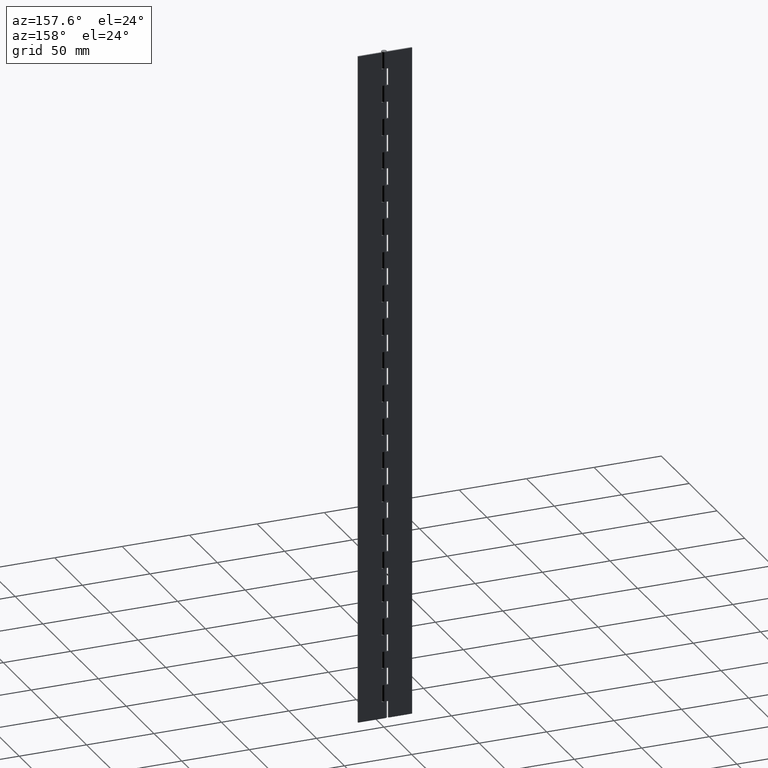
[diagram: clean part render]
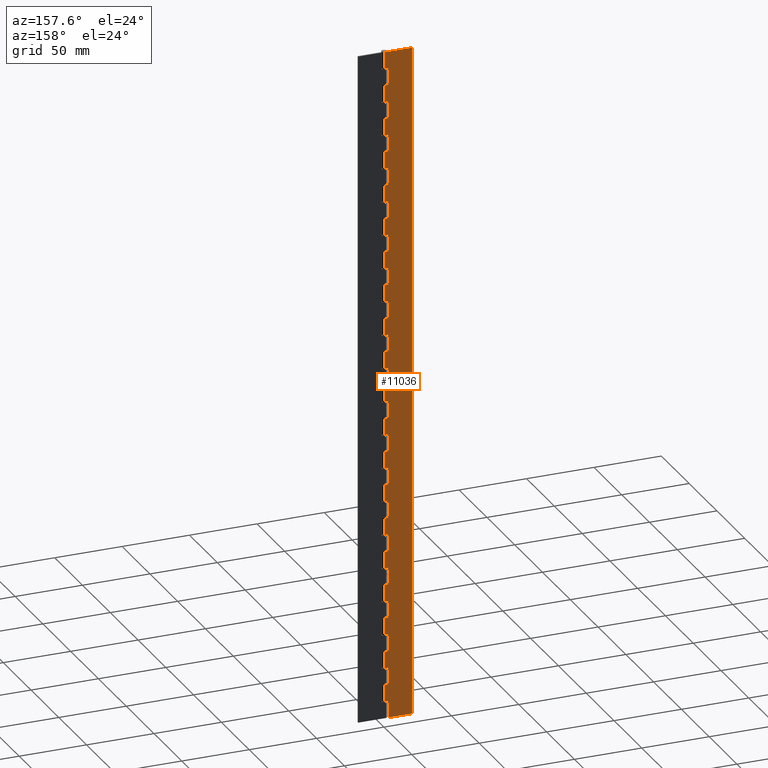
[diagram: same view with one face highlighted and labeled with its STEP entity id]
A machine part, auxiliary view. The second image highlights one B-rep face of the part: STEP entity #11036.
In plain terms, the highlighted face is a freeform B-spline surface patch.
Its self-contained STEP definition (entity closure, byte-faithful):
#5568=CARTESIAN_POINT('',(-2.500000000000000,2.0,475.0));
#5569=VERTEX_POINT('',#5568);
#5575=CARTESIAN_POINT('',(-2.500000000000000,2.0,487.500000000000000));
#5576=VERTEX_POINT('',#5575);
#5577=CARTESIAN_POINT('',(-2.500000000000000,2.0,487.500000000000000));
#5578=CARTESIAN_POINT('',(-2.500000000000000,2.0,475.0));
#5579=QUASI_UNIFORM_CURVE('',1,(#5577,#5578),.UNSPECIFIED.,.F.,.U.);
#5580=EDGE_CURVE('',#5576,#5569,#5579,.T.);
#5604=CARTESIAN_POINT('',(0.0,2.0,475.0));
#5605=VERTEX_POINT('',#5604);
#5625=CARTESIAN_POINT('',(-2.500000000000000,2.0,475.0));
#5626=CARTESIAN_POINT('',(0.0,2.0,475.0));
#5627=QUASI_UNIFORM_CURVE('',1,(#5625,#5626),.UNSPECIFIED.,.F.,.U.);
#5628=EDGE_CURVE('',#5569,#5605,#5627,.T.);
#5672=CARTESIAN_POINT('',(0.0,2.0,487.500000000000000));
#5673=VERTEX_POINT('',#5672);
#5729=CARTESIAN_POINT('',(0.0,2.0,487.500000000000000));
#5730=CARTESIAN_POINT('',(-2.500000000000000,2.0,487.500000000000000));
#5731=QUASI_UNIFORM_CURVE('',1,(#5729,#5730),.UNSPECIFIED.,.F.,.U.);
#5732=EDGE_CURVE('',#5673,#5576,#5731,.T.);
#5744=CARTESIAN_POINT('',(-2.500000000000000,2.0,450.0));
#5745=VERTEX_POINT('',#5744);
#5751=CARTESIAN_POINT('',(-2.500000000000000,2.0,462.500000000000000));
#5752=VERTEX_POINT('',#5751);
#5753=CARTESIAN_POINT('',(-2.500000000000000,2.0,462.500000000000000));
#5754=CARTESIAN_POINT('',(-2.500000000000000,2.0,450.0));
#5755=QUASI_UNIFORM_CURVE('',1,(#5753,#5754),.UNSPECIFIED.,.F.,.U.);
#5756=EDGE_CURVE('',#5752,#5745,#5755,.T.);
#5780=CARTESIAN_POINT('',(0.0,2.0,450.0));
#5781=VERTEX_POINT('',#5780);
#5801=CARTESIAN_POINT('',(-2.500000000000000,2.0,450.0));
#5802=CARTESIAN_POINT('',(0.0,2.0,450.0));
#5803=QUASI_UNIFORM_CURVE('',1,(#5801,#5802),.UNSPECIFIED.,.F.,.U.);
#5804=EDGE_CURVE('',#5745,#5781,#5803,.T.);
#5848=CARTESIAN_POINT('',(0.0,2.0,462.500000000000000));
#5849=VERTEX_POINT('',#5848);
#5905=CARTESIAN_POINT('',(0.0,2.0,462.500000000000000));
#5906=CARTESIAN_POINT('',(-2.500000000000000,2.0,462.500000000000000));
#5907=QUASI_UNIFORM_CURVE('',1,(#5905,#5906),.UNSPECIFIED.,.F.,.U.);
#5908=EDGE_CURVE('',#5849,#5752,#5907,.T.);
#5920=CARTESIAN_POINT('',(-2.500000000000000,2.0,425.0));
#5921=VERTEX_POINT('',#5920);
#5927=CARTESIAN_POINT('',(-2.500000000000000,2.0,437.500000000000000));
#5928=VERTEX_POINT('',#5927);
#5929=CARTESIAN_POINT('',(-2.500000000000000,2.0,437.500000000000000));
#5930=CARTESIAN_POINT('',(-2.500000000000000,2.0,425.0));
#5931=QUASI_UNIFORM_CURVE('',1,(#5929,#5930),.UNSPECIFIED.,.F.,.U.);
#5932=EDGE_CURVE('',#5928,#5921,#5931,.T.);
#5956=CARTESIAN_POINT('',(0.0,2.0,425.0));
#5957=VERTEX_POINT('',#5956);
#5977=CARTESIAN_POINT('',(-2.500000000000000,2.0,425.0));
#5978=CARTESIAN_POINT('',(0.0,2.0,425.0));
#5979=QUASI_UNIFORM_CURVE('',1,(#5977,#5978),.UNSPECIFIED.,.F.,.U.);
#5980=EDGE_CURVE('',#5921,#5957,#5979,.T.);
#6024=CARTESIAN_POINT('',(0.0,2.0,437.500000000000000));
#6025=VERTEX_POINT('',#6024);
#6081=CARTESIAN_POINT('',(0.0,2.0,437.500000000000000));
#6082=CARTESIAN_POINT('',(-2.500000000000000,2.0,437.500000000000000));
#6083=QUASI_UNIFORM_CURVE('',1,(#6081,#6082),.UNSPECIFIED.,.F.,.U.);
#6084=EDGE_CURVE('',#6025,#5928,#6083,.T.);
#6096=CARTESIAN_POINT('',(-2.500000000000000,2.0,400.0));
#6097=VERTEX_POINT('',#6096);
#6103=CARTESIAN_POINT('',(-2.500000000000000,2.0,412.500000000000000));
#6104=VERTEX_POINT('',#6103);
#6105=CARTESIAN_POINT('',(-2.500000000000000,2.0,412.500000000000000));
#6106=CARTESIAN_POINT('',(-2.500000000000000,2.0,400.0));
#6107=QUASI_UNIFORM_CURVE('',1,(#6105,#6106),.UNSPECIFIED.,.F.,.U.);
#6108=EDGE_CURVE('',#6104,#6097,#6107,.T.);
#6132=CARTESIAN_POINT('',(0.0,2.0,400.0));
#6133=VERTEX_POINT('',#6132);
#6153=CARTESIAN_POINT('',(-2.500000000000000,2.0,400.0));
#6154=CARTESIAN_POINT('',(0.0,2.0,400.0));
#6155=QUASI_UNIFORM_CURVE('',1,(#6153,#6154),.UNSPECIFIED.,.F.,.U.);
#6156=EDGE_CURVE('',#6097,#6133,#6155,.T.);
#6200=CARTESIAN_POINT('',(0.0,2.0,412.500000000000000));
#6201=VERTEX_POINT('',#6200);
#6257=CARTESIAN_POINT('',(0.0,2.0,412.500000000000000));
#6258=CARTESIAN_POINT('',(-2.500000000000000,2.0,412.500000000000000));
#6259=QUASI_UNIFORM_CURVE('',1,(#6257,#6258),.UNSPECIFIED.,.F.,.U.);
#6260=EDGE_CURVE('',#6201,#6104,#6259,.T.);
#6272=CARTESIAN_POINT('',(-2.500000000000000,2.0,375.0));
#6273=VERTEX_POINT('',#6272);
#6279=CARTESIAN_POINT('',(-2.500000000000000,2.0,387.500000000000000));
#6280=VERTEX_POINT('',#6279);
#6281=CARTESIAN_POINT('',(-2.500000000000000,2.0,387.500000000000000));
#6282=CARTESIAN_POINT('',(-2.500000000000000,2.0,375.0));
#6283=QUASI_UNIFORM_CURVE('',1,(#6281,#6282),.UNSPECIFIED.,.F.,.U.);
#6284=EDGE_CURVE('',#6280,#6273,#6283,.T.);
#6308=CARTESIAN_POINT('',(0.0,2.0,375.0));
#6309=VERTEX_POINT('',#6308);
#6329=CARTESIAN_POINT('',(-2.500000000000000,2.0,375.0));
#6330=CARTESIAN_POINT('',(0.0,2.0,375.0));
#6331=QUASI_UNIFORM_CURVE('',1,(#6329,#6330),.UNSPECIFIED.,.F.,.U.);
#6332=EDGE_CURVE('',#6273,#6309,#6331,.T.);
#6376=CARTESIAN_POINT('',(0.0,2.0,387.500000000000000));
#6377=VERTEX_POINT('',#6376);
#6433=CARTESIAN_POINT('',(0.0,2.0,387.500000000000000));
#6434=CARTESIAN_POINT('',(-2.500000000000000,2.0,387.500000000000000));
#6435=QUASI_UNIFORM_CURVE('',1,(#6433,#6434),.UNSPECIFIED.,.F.,.U.);
#6436=EDGE_CURVE('',#6377,#6280,#6435,.T.);
#6448=CARTESIAN_POINT('',(-2.500000000000000,2.0,350.0));
#6449=VERTEX_POINT('',#6448);
#6455=CARTESIAN_POINT('',(-2.500000000000000,2.0,362.500000000000000));
#6456=VERTEX_POINT('',#6455);
#6457=CARTESIAN_POINT('',(-2.500000000000000,2.0,362.500000000000000));
#6458=CARTESIAN_POINT('',(-2.500000000000000,2.0,350.0));
#6459=QUASI_UNIFORM_CURVE('',1,(#6457,#6458),.UNSPECIFIED.,.F.,.U.);
#6460=EDGE_CURVE('',#6456,#6449,#6459,.T.);
#6484=CARTESIAN_POINT('',(0.0,2.0,350.0));
#6485=VERTEX_POINT('',#6484);
#6505=CARTESIAN_POINT('',(-2.500000000000000,2.0,350.0));
#6506=CARTESIAN_POINT('',(0.0,2.0,350.0));
#6507=QUASI_UNIFORM_CURVE('',1,(#6505,#6506),.UNSPECIFIED.,.F.,.U.);
#6508=EDGE_CURVE('',#6449,#6485,#6507,.T.);
#6552=CARTESIAN_POINT('',(0.0,2.0,362.500000000000000));
#6553=VERTEX_POINT('',#6552);
#6609=CARTESIAN_POINT('',(0.0,2.0,362.500000000000000));
#6610=CARTESIAN_POINT('',(-2.500000000000000,2.0,362.500000000000000));
#6611=QUASI_UNIFORM_CURVE('',1,(#6609,#6610),.UNSPECIFIED.,.F.,.U.);
#6612=EDGE_CURVE('',#6553,#6456,#6611,.T.);
#6624=CARTESIAN_POINT('',(-2.500000000000000,2.0,325.0));
#6625=VERTEX_POINT('',#6624);
#6631=CARTESIAN_POINT('',(-2.500000000000000,2.0,337.500000000000000));
#6632=VERTEX_POINT('',#6631);
#6633=CARTESIAN_POINT('',(-2.500000000000000,2.0,337.500000000000000));
#6634=CARTESIAN_POINT('',(-2.500000000000000,2.0,325.0));
#6635=QUASI_UNIFORM_CURVE('',1,(#6633,#6634),.UNSPECIFIED.,.F.,.U.);
#6636=EDGE_CURVE('',#6632,#6625,#6635,.T.);
#6660=CARTESIAN_POINT('',(0.0,2.0,325.0));
#6661=VERTEX_POINT('',#6660);
#6681=CARTESIAN_POINT('',(-2.500000000000000,2.0,325.0));
#6682=CARTESIAN_POINT('',(0.0,2.0,325.0));
#6683=QUASI_UNIFORM_CURVE('',1,(#6681,#6682),.UNSPECIFIED.,.F.,.U.);
#6684=EDGE_CURVE('',#6625,#6661,#6683,.T.);
#6728=CARTESIAN_POINT('',(0.0,2.0,337.500000000000000));
#6729=VERTEX_POINT('',#6728);
#6785=CARTESIAN_POINT('',(0.0,2.0,337.500000000000000));
#6786=CARTESIAN_POINT('',(-2.500000000000000,2.0,337.500000000000000));
#6787=QUASI_UNIFORM_CURVE('',1,(#6785,#6786),.UNSPECIFIED.,.F.,.U.);
#6788=EDGE_CURVE('',#6729,#6632,#6787,.T.);
#6800=CARTESIAN_POINT('',(-2.500000000000000,2.0,300.0));
#6801=VERTEX_POINT('',#6800);
#6807=CARTESIAN_POINT('',(-2.500000000000000,2.0,312.500000000000000));
#6808=VERTEX_POINT('',#6807);
#6809=CARTESIAN_POINT('',(-2.500000000000000,2.0,312.500000000000000));
#6810=CARTESIAN_POINT('',(-2.500000000000000,2.0,300.0));
#6811=QUASI_UNIFORM_CURVE('',1,(#6809,#6810),.UNSPECIFIED.,.F.,.U.);
#6812=EDGE_CURVE('',#6808,#6801,#6811,.T.);
#6836=CARTESIAN_POINT('',(0.0,2.0,300.0));
#6837=VERTEX_POINT('',#6836);
#6857=CARTESIAN_POINT('',(-2.500000000000000,2.0,300.0));
#6858=CARTESIAN_POINT('',(0.0,2.0,300.0));
#6859=QUASI_UNIFORM_CURVE('',1,(#6857,#6858),.UNSPECIFIED.,.F.,.U.);
#6860=EDGE_CURVE('',#6801,#6837,#6859,.T.);
#6904=CARTESIAN_POINT('',(0.0,2.0,312.500000000000000));
#6905=VERTEX_POINT('',#6904);
#6961=CARTESIAN_POINT('',(0.0,2.0,312.500000000000000));
#6962=CARTESIAN_POINT('',(-2.500000000000000,2.0,312.500000000000000));
#6963=QUASI_UNIFORM_CURVE('',1,(#6961,#6962),.UNSPECIFIED.,.F.,.U.);
#6964=EDGE_CURVE('',#6905,#6808,#6963,.T.);
#6976=CARTESIAN_POINT('',(-2.500000000000000,2.0,275.0));
#6977=VERTEX_POINT('',#6976);
#6983=CARTESIAN_POINT('',(-2.500000000000000,2.0,287.500000000000000));
#6984=VERTEX_POINT('',#6983);
#6985=CARTESIAN_POINT('',(-2.500000000000000,2.0,287.500000000000000));
#6986=CARTESIAN_POINT('',(-2.500000000000000,2.0,275.0));
#6987=QUASI_UNIFORM_CURVE('',1,(#6985,#6986),.UNSPECIFIED.,.F.,.U.);
#6988=EDGE_CURVE('',#6984,#6977,#6987,.T.);
#7012=CARTESIAN_POINT('',(0.0,2.0,275.0));
#7013=VERTEX_POINT('',#7012);
#7033=CARTESIAN_POINT('',(-2.500000000000000,2.0,275.0));
#7034=CARTESIAN_POINT('',(0.0,2.0,275.0));
#7035=QUASI_UNIFORM_CURVE('',1,(#7033,#7034),.UNSPECIFIED.,.F.,.U.);
#7036=EDGE_CURVE('',#6977,#7013,#7035,.T.);
#7080=CARTESIAN_POINT('',(0.0,2.0,287.500000000000000));
#7081=VERTEX_POINT('',#7080);
#7137=CARTESIAN_POINT('',(0.0,2.0,287.500000000000000));
#7138=CARTESIAN_POINT('',(-2.500000000000000,2.0,287.500000000000000));
#7139=QUASI_UNIFORM_CURVE('',1,(#7137,#7138),.UNSPECIFIED.,.F.,.U.);
#7140=EDGE_CURVE('',#7081,#6984,#7139,.T.);
#7152=CARTESIAN_POINT('',(-2.500000000000000,2.0,250.0));
#7153=VERTEX_POINT('',#7152);
#7159=CARTESIAN_POINT('',(-2.500000000000000,2.0,262.500000000000000));
#7160=VERTEX_POINT('',#7159);
#7161=CARTESIAN_POINT('',(-2.500000000000000,2.0,262.500000000000000));
#7162=CARTESIAN_POINT('',(-2.500000000000000,2.0,250.0));
#7163=QUASI_UNIFORM_CURVE('',1,(#7161,#7162),.UNSPECIFIED.,.F.,.U.);
#7164=EDGE_CURVE('',#7160,#7153,#7163,.T.);
#7188=CARTESIAN_POINT('',(0.0,2.0,250.0));
#7189=VERTEX_POINT('',#7188);
#7209=CARTESIAN_POINT('',(-2.500000000000000,2.0,250.0));
#7210=CARTESIAN_POINT('',(0.0,2.0,250.0));
#7211=QUASI_UNIFORM_CURVE('',1,(#7209,#7210),.UNSPECIFIED.,.F.,.U.);
#7212=EDGE_CURVE('',#7153,#7189,#7211,.T.);
#7256=CARTESIAN_POINT('',(0.0,2.0,262.500000000000000));
#7257=VERTEX_POINT('',#7256);
#7313=CARTESIAN_POINT('',(0.0,2.0,262.500000000000000));
#7314=CARTESIAN_POINT('',(-2.500000000000000,2.0,262.500000000000000));
#7315=QUASI_UNIFORM_CURVE('',1,(#7313,#7314),.UNSPECIFIED.,.F.,.U.);
#7316=EDGE_CURVE('',#7257,#7160,#7315,.T.);
#7328=CARTESIAN_POINT('',(-2.500000000000000,2.0,225.0));
#7329=VERTEX_POINT('',#7328);
#7335=CARTESIAN_POINT('',(-2.500000000000000,2.0,237.500000000000000));
#7336=VERTEX_POINT('',#7335);
#7337=CARTESIAN_POINT('',(-2.500000000000000,2.0,237.500000000000000));
#7338=CARTESIAN_POINT('',(-2.500000000000000,2.0,225.0));
#7339=QUASI_UNIFORM_CURVE('',1,(#7337,#7338),.UNSPECIFIED.,.F.,.U.);
#7340=EDGE_CURVE('',#7336,#7329,#7339,.T.);
#7364=CARTESIAN_POINT('',(0.0,2.0,225.0));
#7365=VERTEX_POINT('',#7364);
#7385=CARTESIAN_POINT('',(-2.500000000000000,2.0,225.0));
#7386=CARTESIAN_POINT('',(0.0,2.0,225.0));
#7387=QUASI_UNIFORM_CURVE('',1,(#7385,#7386),.UNSPECIFIED.,.F.,.U.);
#7388=EDGE_CURVE('',#7329,#7365,#7387,.T.);
#7432=CARTESIAN_POINT('',(0.0,2.0,237.500000000000000));
#7433=VERTEX_POINT('',#7432);
#7489=CARTESIAN_POINT('',(0.0,2.0,237.500000000000000));
#7490=CARTESIAN_POINT('',(-2.500000000000000,2.0,237.500000000000000));
#7491=QUASI_UNIFORM_CURVE('',1,(#7489,#7490),.UNSPECIFIED.,.F.,.U.);
#7492=EDGE_CURVE('',#7433,#7336,#7491,.T.);
#7504=CARTESIAN_POINT('',(-2.500000000000000,2.0,200.0));
#7505=VERTEX_POINT('',#7504);
#7511=CARTESIAN_POINT('',(-2.500000000000000,2.0,212.500000000000000));
#7512=VERTEX_POINT('',#7511);
#7513=CARTESIAN_POINT('',(-2.500000000000000,2.0,212.500000000000000));
#7514=CARTESIAN_POINT('',(-2.500000000000000,2.0,200.0));
#7515=QUASI_UNIFORM_CURVE('',1,(#7513,#7514),.UNSPECIFIED.,.F.,.U.);
#7516=EDGE_CURVE('',#7512,#7505,#7515,.T.);
#7540=CARTESIAN_POINT('',(0.0,2.0,200.0));
#7541=VERTEX_POINT('',#7540);
#7561=CARTESIAN_POINT('',(-2.500000000000000,2.0,200.0));
#7562=CARTESIAN_POINT('',(0.0,2.0,200.0));
#7563=QUASI_UNIFORM_CURVE('',1,(#7561,#7562),.UNSPECIFIED.,.F.,.U.);
#7564=EDGE_CURVE('',#7505,#7541,#7563,.T.);
#7608=CARTESIAN_POINT('',(0.0,2.0,212.500000000000000));
#7609=VERTEX_POINT('',#7608);
#7665=CARTESIAN_POINT('',(0.0,2.0,212.500000000000000));
#7666=CARTESIAN_POINT('',(-2.500000000000000,2.0,212.500000000000000));
#7667=QUASI_UNIFORM_CURVE('',1,(#7665,#7666),.UNSPECIFIED.,.F.,.U.);
#7668=EDGE_CURVE('',#7609,#7512,#7667,.T.);
#7680=CARTESIAN_POINT('',(-2.500000000000000,2.0,175.0));
#7681=VERTEX_POINT('',#7680);
#7687=CARTESIAN_POINT('',(-2.500000000000000,2.0,187.500000000000000));
#7688=VERTEX_POINT('',#7687);
#7689=CARTESIAN_POINT('',(-2.500000000000000,2.0,187.500000000000000));
#7690=CARTESIAN_POINT('',(-2.500000000000000,2.0,175.0));
#7691=QUASI_UNIFORM_CURVE('',1,(#7689,#7690),.UNSPECIFIED.,.F.,.U.);
#7692=EDGE_CURVE('',#7688,#7681,#7691,.T.);
#7716=CARTESIAN_POINT('',(0.0,2.0,175.0));
#7717=VERTEX_POINT('',#7716);
#7737=CARTESIAN_POINT('',(-2.500000000000000,2.0,175.0));
#7738=CARTESIAN_POINT('',(0.0,2.0,175.0));
#7739=QUASI_UNIFORM_CURVE('',1,(#7737,#7738),.UNSPECIFIED.,.F.,.U.);
#7740=EDGE_CURVE('',#7681,#7717,#7739,.T.);
#7784=CARTESIAN_POINT('',(0.0,2.0,187.500000000000000));
#7785=VERTEX_POINT('',#7784);
#7841=CARTESIAN_POINT('',(0.0,2.0,187.500000000000000));
#7842=CARTESIAN_POINT('',(-2.500000000000000,2.0,187.500000000000000));
#7843=QUASI_UNIFORM_CURVE('',1,(#7841,#7842),.UNSPECIFIED.,.F.,.U.);
#7844=EDGE_CURVE('',#7785,#7688,#7843,.T.);
#7856=CARTESIAN_POINT('',(-2.500000000000000,2.0,150.0));
#7857=VERTEX_POINT('',#7856);
#7863=CARTESIAN_POINT('',(-2.500000000000000,2.0,162.500000000000000));
#7864=VERTEX_POINT('',#7863);
#7865=CARTESIAN_POINT('',(-2.500000000000000,2.0,162.500000000000000));
#7866=CARTESIAN_POINT('',(-2.500000000000000,2.0,150.0));
#7867=QUASI_UNIFORM_CURVE('',1,(#7865,#7866),.UNSPECIFIED.,.F.,.U.);
#7868=EDGE_CURVE('',#7864,#7857,#7867,.T.);
#7892=CARTESIAN_POINT('',(0.0,2.0,150.0));
#7893=VERTEX_POINT('',#7892);
#7913=CARTESIAN_POINT('',(-2.500000000000000,2.0,150.0));
#7914=CARTESIAN_POINT('',(0.0,2.0,150.0));
#7915=QUASI_UNIFORM_CURVE('',1,(#7913,#7914),.UNSPECIFIED.,.F.,.U.);
#7916=EDGE_CURVE('',#7857,#7893,#7915,.T.);
#7960=CARTESIAN_POINT('',(0.0,2.0,162.500000000000000));
#7961=VERTEX_POINT('',#7960);
#8017=CARTESIAN_POINT('',(0.0,2.0,162.500000000000000));
#8018=CARTESIAN_POINT('',(-2.500000000000000,2.0,162.500000000000000));
#8019=QUASI_UNIFORM_CURVE('',1,(#8017,#8018),.UNSPECIFIED.,.F.,.U.);
#8020=EDGE_CURVE('',#7961,#7864,#8019,.T.);
#8032=CARTESIAN_POINT('',(-2.500000000000000,2.0,125.0));
#8033=VERTEX_POINT('',#8032);
#8039=CARTESIAN_POINT('',(-2.500000000000000,2.0,137.500000000000000));
#8040=VERTEX_POINT('',#8039);
#8041=CARTESIAN_POINT('',(-2.500000000000000,2.0,137.500000000000000));
#8042=CARTESIAN_POINT('',(-2.500000000000000,2.0,125.0));
#8043=QUASI_UNIFORM_CURVE('',1,(#8041,#8042),.UNSPECIFIED.,.F.,.U.);
#8044=EDGE_CURVE('',#8040,#8033,#8043,.T.);
#8068=CARTESIAN_POINT('',(0.0,2.0,125.0));
#8069=VERTEX_POINT('',#8068);
#8089=CARTESIAN_POINT('',(-2.500000000000000,2.0,125.0));
#8090=CARTESIAN_POINT('',(0.0,2.0,125.0));
#8091=QUASI_UNIFORM_CURVE('',1,(#8089,#8090),.UNSPECIFIED.,.F.,.U.);
#8092=EDGE_CURVE('',#8033,#8069,#8091,.T.);
#8136=CARTESIAN_POINT('',(0.0,2.0,137.500000000000000));
#8137=VERTEX_POINT('',#8136);
#8193=CARTESIAN_POINT('',(0.0,2.0,137.500000000000000));
#8194=CARTESIAN_POINT('',(-2.500000000000000,2.0,137.500000000000000));
#8195=QUASI_UNIFORM_CURVE('',1,(#8193,#8194),.UNSPECIFIED.,.F.,.U.);
#8196=EDGE_CURVE('',#8137,#8040,#8195,.T.);
#8208=CARTESIAN_POINT('',(-2.500000000000000,2.0,100.0));
#8209=VERTEX_POINT('',#8208);
#8215=CARTESIAN_POINT('',(-2.500000000000000,2.0,112.500000000000000));
#8216=VERTEX_POINT('',#8215);
#8217=CARTESIAN_POINT('',(-2.500000000000000,2.0,112.500000000000000));
#8218=CARTESIAN_POINT('',(-2.500000000000000,2.0,100.0));
#8219=QUASI_UNIFORM_CURVE('',1,(#8217,#8218),.UNSPECIFIED.,.F.,.U.);
#8220=EDGE_CURVE('',#8216,#8209,#8219,.T.);
#8244=CARTESIAN_POINT('',(0.0,2.0,100.0));
#8245=VERTEX_POINT('',#8244);
#8265=CARTESIAN_POINT('',(-2.500000000000000,2.0,100.0));
#8266=CARTESIAN_POINT('',(0.0,2.0,100.0));
#8267=QUASI_UNIFORM_CURVE('',1,(#8265,#8266),.UNSPECIFIED.,.F.,.U.);
#8268=EDGE_CURVE('',#8209,#8245,#8267,.T.);
#8312=CARTESIAN_POINT('',(0.0,2.0,112.500000000000000));
#8313=VERTEX_POINT('',#8312);
#8369=CARTESIAN_POINT('',(0.0,2.0,112.500000000000000));
#8370=CARTESIAN_POINT('',(-2.500000000000000,2.0,112.500000000000000));
#8371=QUASI_UNIFORM_CURVE('',1,(#8369,#8370),.UNSPECIFIED.,.F.,.U.);
#8372=EDGE_CURVE('',#8313,#8216,#8371,.T.);
#8384=CARTESIAN_POINT('',(-2.500000000000000,2.0,75.0));
#8385=VERTEX_POINT('',#8384);
#8391=CARTESIAN_POINT('',(-2.500000000000000,2.0,87.500000000000000));
#8392=VERTEX_POINT('',#8391);
#8393=CARTESIAN_POINT('',(-2.500000000000000,2.0,87.500000000000000));
#8394=CARTESIAN_POINT('',(-2.500000000000000,2.0,75.0));
#8395=QUASI_UNIFORM_CURVE('',1,(#8393,#8394),.UNSPECIFIED.,.F.,.U.);
#8396=EDGE_CURVE('',#8392,#8385,#8395,.T.);
#8420=CARTESIAN_POINT('',(0.0,2.0,75.0));
#8421=VERTEX_POINT('',#8420);
#8441=CARTESIAN_POINT('',(-2.500000000000000,2.0,75.0));
#8442=CARTESIAN_POINT('',(0.0,2.0,75.0));
#8443=QUASI_UNIFORM_CURVE('',1,(#8441,#8442),.UNSPECIFIED.,.F.,.U.);
#8444=EDGE_CURVE('',#8385,#8421,#8443,.T.);
#8488=CARTESIAN_POINT('',(0.0,2.0,87.500000000000000));
#8489=VERTEX_POINT('',#8488);
#8545=CARTESIAN_POINT('',(0.0,2.0,87.500000000000000));
#8546=CARTESIAN_POINT('',(-2.500000000000000,2.0,87.500000000000000));
#8547=QUASI_UNIFORM_CURVE('',1,(#8545,#8546),.UNSPECIFIED.,.F.,.U.);
#8548=EDGE_CURVE('',#8489,#8392,#8547,.T.);
#8560=CARTESIAN_POINT('',(-2.500000000000000,2.0,50.0));
#8561=VERTEX_POINT('',#8560);
#8567=CARTESIAN_POINT('',(-2.500000000000000,2.0,62.500000000000000));
#8568=VERTEX_POINT('',#8567);
#8569=CARTESIAN_POINT('',(-2.500000000000000,2.0,62.500000000000000));
#8570=CARTESIAN_POINT('',(-2.500000000000000,2.0,50.0));
#8571=QUASI_UNIFORM_CURVE('',1,(#8569,#8570),.UNSPECIFIED.,.F.,.U.);
#8572=EDGE_CURVE('',#8568,#8561,#8571,.T.);
#8596=CARTESIAN_POINT('',(0.0,2.0,50.0));
#8597=VERTEX_POINT('',#8596);
#8617=CARTESIAN_POINT('',(-2.500000000000000,2.0,50.0));
#8618=CARTESIAN_POINT('',(0.0,2.0,50.0));
#8619=QUASI_UNIFORM_CURVE('',1,(#8617,#8618),.UNSPECIFIED.,.F.,.U.);
#8620=EDGE_CURVE('',#8561,#8597,#8619,.T.);
#8664=CARTESIAN_POINT('',(0.0,2.0,62.500000000000000));
#8665=VERTEX_POINT('',#8664);
#8721=CARTESIAN_POINT('',(0.0,2.0,62.500000000000000));
#8722=CARTESIAN_POINT('',(-2.500000000000000,2.0,62.500000000000000));
#8723=QUASI_UNIFORM_CURVE('',1,(#8721,#8722),.UNSPECIFIED.,.F.,.U.);
#8724=EDGE_CURVE('',#8665,#8568,#8723,.T.);
#8736=CARTESIAN_POINT('',(-2.500000000000000,2.0,25.0));
#8737=VERTEX_POINT('',#8736);
#8743=CARTESIAN_POINT('',(-2.500000000000000,2.0,37.500000000000000));
#8744=VERTEX_POINT('',#8743);
#8745=CARTESIAN_POINT('',(-2.500000000000000,2.0,37.500000000000000));
#8746=CARTESIAN_POINT('',(-2.500000000000000,2.0,25.0));
#8747=QUASI_UNIFORM_CURVE('',1,(#8745,#8746),.UNSPECIFIED.,.F.,.U.);
#8748=EDGE_CURVE('',#8744,#8737,#8747,.T.);
#8772=CARTESIAN_POINT('',(0.0,2.0,25.0));
#8773=VERTEX_POINT('',#8772);
#8793=CARTESIAN_POINT('',(-2.500000000000000,2.0,25.0));
#8794=CARTESIAN_POINT('',(0.0,2.0,25.0));
#8795=QUASI_UNIFORM_CURVE('',1,(#8793,#8794),.UNSPECIFIED.,.F.,.U.);
#8796=EDGE_CURVE('',#8737,#8773,#8795,.T.);
#8840=CARTESIAN_POINT('',(0.0,2.0,37.500000000000000));
#8841=VERTEX_POINT('',#8840);
#8897=CARTESIAN_POINT('',(0.0,2.0,37.500000000000000));
#8898=CARTESIAN_POINT('',(-2.500000000000000,2.0,37.500000000000000));
#8899=QUASI_UNIFORM_CURVE('',1,(#8897,#8898),.UNSPECIFIED.,.F.,.U.);
#8900=EDGE_CURVE('',#8841,#8744,#8899,.T.);
#8912=CARTESIAN_POINT('',(-2.500000000000000,2.0,0.0));
#8913=VERTEX_POINT('',#8912);
#8919=CARTESIAN_POINT('',(-2.500000000000000,2.0,12.500000000000000));
#8920=VERTEX_POINT('',#8919);
#8921=CARTESIAN_POINT('',(-2.500000000000000,2.0,12.500000000000000));
#8922=CARTESIAN_POINT('',(-2.500000000000000,2.0,0.0));
#8923=QUASI_UNIFORM_CURVE('',1,(#8921,#8922),.UNSPECIFIED.,.F.,.U.);
#8924=EDGE_CURVE('',#8920,#8913,#8923,.T.);
#8946=CARTESIAN_POINT('',(0.0,2.0,12.500000000000000));
#8947=VERTEX_POINT('',#8946);
#9003=CARTESIAN_POINT('',(0.0,2.0,12.500000000000000));
#9004=CARTESIAN_POINT('',(-2.500000000000000,2.0,12.500000000000000));
#9005=QUASI_UNIFORM_CURVE('',1,(#9003,#9004),.UNSPECIFIED.,.F.,.U.);
#9006=EDGE_CURVE('',#8947,#8920,#9005,.T.);
#9016=CARTESIAN_POINT('',(-20.0,2.0,500.0));
#9017=VERTEX_POINT('',#9016);
#9018=CARTESIAN_POINT('',(1.224606E-016,2.0,500.0));
#9019=VERTEX_POINT('',#9018);
#9020=CARTESIAN_POINT('',(-20.0,2.0,500.0));
#9021=CARTESIAN_POINT('',(1.224606E-016,2.0,500.0));
#9022=QUASI_UNIFORM_CURVE('',1,(#9020,#9021),.UNSPECIFIED.,.F.,.U.);
#9023=EDGE_CURVE('',#9017,#9019,#9022,.T.);
#9096=CARTESIAN_POINT('',(-20.0,2.0,0.0));
#9097=VERTEX_POINT('',#9096);
#9109=CARTESIAN_POINT('',(-20.0,2.0,500.0));
#9110=CARTESIAN_POINT('',(-20.0,2.0,0.0));
#9111=QUASI_UNIFORM_CURVE('',1,(#9109,#9110),.UNSPECIFIED.,.F.,.U.);
#9112=EDGE_CURVE('',#9017,#9097,#9111,.T.);
#9129=CARTESIAN_POINT('',(-20.0,2.0,0.0));
#9130=CARTESIAN_POINT('',(-2.500000000000000,2.0,0.0));
#9131=QUASI_UNIFORM_CURVE('',1,(#9129,#9130),.UNSPECIFIED.,.F.,.U.);
#9132=EDGE_CURVE('',#9097,#8913,#9131,.T.);
#9215=CARTESIAN_POINT('',(0.0,2.0,25.0));
#9216=CARTESIAN_POINT('',(0.0,2.0,12.500000000000000));
#9217=QUASI_UNIFORM_CURVE('',1,(#9215,#9216),.UNSPECIFIED.,.F.,.U.);
#9218=EDGE_CURVE('',#8773,#8947,#9217,.T.);
#9301=CARTESIAN_POINT('',(0.0,2.0,50.0));
#9302=CARTESIAN_POINT('',(0.0,2.0,37.500000000000000));
#9303=QUASI_UNIFORM_CURVE('',1,(#9301,#9302),.UNSPECIFIED.,.F.,.U.);
#9304=EDGE_CURVE('',#8597,#8841,#9303,.T.);
#9387=CARTESIAN_POINT('',(0.0,2.0,75.0));
#9388=CARTESIAN_POINT('',(0.0,2.0,62.500000000000000));
#9389=QUASI_UNIFORM_CURVE('',1,(#9387,#9388),.UNSPECIFIED.,.F.,.U.);
#9390=EDGE_CURVE('',#8421,#8665,#9389,.T.);
#9473=CARTESIAN_POINT('',(0.0,2.0,100.0));
#9474=CARTESIAN_POINT('',(0.0,2.0,87.500000000000000));
#9475=QUASI_UNIFORM_CURVE('',1,(#9473,#9474),.UNSPECIFIED.,.F.,.U.);
#9476=EDGE_CURVE('',#8245,#8489,#9475,.T.);
#9559=CARTESIAN_POINT('',(0.0,2.0,125.0));
#9560=CARTESIAN_POINT('',(0.0,2.0,112.500000000000000));
#9561=QUASI_UNIFORM_CURVE('',1,(#9559,#9560),.UNSPECIFIED.,.F.,.U.);
#9562=EDGE_CURVE('',#8069,#8313,#9561,.T.);
#9645=CARTESIAN_POINT('',(0.0,2.0,150.0));
#9646=CARTESIAN_POINT('',(0.0,2.0,137.500000000000000));
#9647=QUASI_UNIFORM_CURVE('',1,(#9645,#9646),.UNSPECIFIED.,.F.,.U.);
#9648=EDGE_CURVE('',#7893,#8137,#9647,.T.);
#9731=CARTESIAN_POINT('',(0.0,2.0,175.0));
#9732=CARTESIAN_POINT('',(0.0,2.0,162.500000000000000));
#9733=QUASI_UNIFORM_CURVE('',1,(#9731,#9732),.UNSPECIFIED.,.F.,.U.);
#9734=EDGE_CURVE('',#7717,#7961,#9733,.T.);
#9817=CARTESIAN_POINT('',(0.0,2.0,200.0));
#9818=CARTESIAN_POINT('',(0.0,2.0,187.500000000000000));
#9819=QUASI_UNIFORM_CURVE('',1,(#9817,#9818),.UNSPECIFIED.,.F.,.U.);
#9820=EDGE_CURVE('',#7541,#7785,#9819,.T.);
#9903=CARTESIAN_POINT('',(0.0,2.0,225.0));
#9904=CARTESIAN_POINT('',(0.0,2.0,212.500000000000000));
#9905=QUASI_UNIFORM_CURVE('',1,(#9903,#9904),.UNSPECIFIED.,.F.,.U.);
#9906=EDGE_CURVE('',#7365,#7609,#9905,.T.);
#9989=CARTESIAN_POINT('',(0.0,2.0,250.0));
#9990=CARTESIAN_POINT('',(0.0,2.0,237.500000000000000));
#9991=QUASI_UNIFORM_CURVE('',1,(#9989,#9990),.UNSPECIFIED.,.F.,.U.);
#9992=EDGE_CURVE('',#7189,#7433,#9991,.T.);
#10075=CARTESIAN_POINT('',(0.0,2.0,275.0));
#10076=CARTESIAN_POINT('',(0.0,2.0,262.500000000000000));
#10077=QUASI_UNIFORM_CURVE('',1,(#10075,#10076),.UNSPECIFIED.,.F.,.U.);
#10078=EDGE_CURVE('',#7013,#7257,#10077,.T.);
#10161=CARTESIAN_POINT('',(0.0,2.0,300.0));
#10162=CARTESIAN_POINT('',(0.0,2.0,287.500000000000000));
#10163=QUASI_UNIFORM_CURVE('',1,(#10161,#10162),.UNSPECIFIED.,.F.,.U.);
#10164=EDGE_CURVE('',#6837,#7081,#10163,.T.);
#10247=CARTESIAN_POINT('',(0.0,2.0,325.0));
#10248=CARTESIAN_POINT('',(0.0,2.0,312.500000000000000));
#10249=QUASI_UNIFORM_CURVE('',1,(#10247,#10248),.UNSPECIFIED.,.F.,.U.);
#10250=EDGE_CURVE('',#6661,#6905,#10249,.T.);
#10333=CARTESIAN_POINT('',(0.0,2.0,350.0));
#10334=CARTESIAN_POINT('',(0.0,2.0,337.500000000000000));
#10335=QUASI_UNIFORM_CURVE('',1,(#10333,#10334),.UNSPECIFIED.,.F.,.U.);
#10336=EDGE_CURVE('',#6485,#6729,#10335,.T.);
#10419=CARTESIAN_POINT('',(0.0,2.0,375.0));
#10420=CARTESIAN_POINT('',(0.0,2.0,362.500000000000000));
#10421=QUASI_UNIFORM_CURVE('',1,(#10419,#10420),.UNSPECIFIED.,.F.,.U.);
#10422=EDGE_CURVE('',#6309,#6553,#10421,.T.);
#10505=CARTESIAN_POINT('',(0.0,2.0,400.0));
#10506=CARTESIAN_POINT('',(0.0,2.0,387.500000000000000));
#10507=QUASI_UNIFORM_CURVE('',1,(#10505,#10506),.UNSPECIFIED.,.F.,.U.);
#10508=EDGE_CURVE('',#6133,#6377,#10507,.T.);
#10591=CARTESIAN_POINT('',(0.0,2.0,425.0));
#10592=CARTESIAN_POINT('',(0.0,2.0,412.500000000000000));
#10593=QUASI_UNIFORM_CURVE('',1,(#10591,#10592),.UNSPECIFIED.,.F.,.U.);
#10594=EDGE_CURVE('',#5957,#6201,#10593,.T.);
#10677=CARTESIAN_POINT('',(0.0,2.0,450.0));
#10678=CARTESIAN_POINT('',(0.0,2.0,437.500000000000000));
#10679=QUASI_UNIFORM_CURVE('',1,(#10677,#10678),.UNSPECIFIED.,.F.,.U.);
#10680=EDGE_CURVE('',#5781,#6025,#10679,.T.);
#10906=CARTESIAN_POINT('',(0.0,2.0,475.0));
#10907=CARTESIAN_POINT('',(0.0,2.0,462.500000000000000));
#10908=QUASI_UNIFORM_CURVE('',1,(#10906,#10907),.UNSPECIFIED.,.F.,.U.);
#10909=EDGE_CURVE('',#5605,#5849,#10908,.T.);
#10937=CARTESIAN_POINT('',(1.224606E-016,2.0,500.0));
#10938=CARTESIAN_POINT('',(0.0,2.0,487.500000000000000));
#10939=QUASI_UNIFORM_CURVE('',1,(#10937,#10938),.UNSPECIFIED.,.F.,.U.);
#10940=EDGE_CURVE('',#9019,#5673,#10939,.T.);
#10947=CARTESIAN_POINT('',(-20.998999961236120,2.0,-24.974999030902989));
#10948=CARTESIAN_POINT('',(-20.998999961236120,2.0,524.975012441948140));
#10949=CARTESIAN_POINT('',(0.999000497677922,2.0,-24.974999030902989));
#10950=CARTESIAN_POINT('',(0.999000497677922,2.0,524.975012441948140));
#10951=B_SPLINE_SURFACE_WITH_KNOTS('',1,1,((#10947,#10949),(#10948,#10950)),.UNSPECIFIED.,.F.,.F.,.U.,(2,2),(2,2),(0.0,549.950011472851090),(0.0,21.998000458914039),.UNSPECIFIED.);
#10952=ORIENTED_EDGE('',*,*,#10940,.T.);
#10953=ORIENTED_EDGE('',*,*,#5732,.T.);
#10954=ORIENTED_EDGE('',*,*,#5580,.T.);
#10955=ORIENTED_EDGE('',*,*,#5628,.T.);
#10956=ORIENTED_EDGE('',*,*,#10909,.T.);
#10957=ORIENTED_EDGE('',*,*,#5908,.T.);
#10958=ORIENTED_EDGE('',*,*,#5756,.T.);
#10959=ORIENTED_EDGE('',*,*,#5804,.T.);
#10960=ORIENTED_EDGE('',*,*,#10680,.T.);
#10961=ORIENTED_EDGE('',*,*,#6084,.T.);
#10962=ORIENTED_EDGE('',*,*,#5932,.T.);
#10963=ORIENTED_EDGE('',*,*,#5980,.T.);
#10964=ORIENTED_EDGE('',*,*,#10594,.T.);
#10965=ORIENTED_EDGE('',*,*,#6260,.T.);
#10966=ORIENTED_EDGE('',*,*,#6108,.T.);
#10967=ORIENTED_EDGE('',*,*,#6156,.T.);
#10968=ORIENTED_EDGE('',*,*,#10508,.T.);
#10969=ORIENTED_EDGE('',*,*,#6436,.T.);
#10970=ORIENTED_EDGE('',*,*,#6284,.T.);
#10971=ORIENTED_EDGE('',*,*,#6332,.T.);
#10972=ORIENTED_EDGE('',*,*,#10422,.T.);
#10973=ORIENTED_EDGE('',*,*,#6612,.T.);
#10974=ORIENTED_EDGE('',*,*,#6460,.T.);
#10975=ORIENTED_EDGE('',*,*,#6508,.T.);
#10976=ORIENTED_EDGE('',*,*,#10336,.T.);
#10977=ORIENTED_EDGE('',*,*,#6788,.T.);
#10978=ORIENTED_EDGE('',*,*,#6636,.T.);
#10979=ORIENTED_EDGE('',*,*,#6684,.T.);
#10980=ORIENTED_EDGE('',*,*,#10250,.T.);
#10981=ORIENTED_EDGE('',*,*,#6964,.T.);
#10982=ORIENTED_EDGE('',*,*,#6812,.T.);
#10983=ORIENTED_EDGE('',*,*,#6860,.T.);
#10984=ORIENTED_EDGE('',*,*,#10164,.T.);
#10985=ORIENTED_EDGE('',*,*,#7140,.T.);
#10986=ORIENTED_EDGE('',*,*,#6988,.T.);
#10987=ORIENTED_EDGE('',*,*,#7036,.T.);
#10988=ORIENTED_EDGE('',*,*,#10078,.T.);
#10989=ORIENTED_EDGE('',*,*,#7316,.T.);
#10990=ORIENTED_EDGE('',*,*,#7164,.T.);
#10991=ORIENTED_EDGE('',*,*,#7212,.T.);
#10992=ORIENTED_EDGE('',*,*,#9992,.T.);
#10993=ORIENTED_EDGE('',*,*,#7492,.T.);
#10994=ORIENTED_EDGE('',*,*,#7340,.T.);
#10995=ORIENTED_EDGE('',*,*,#7388,.T.);
#10996=ORIENTED_EDGE('',*,*,#9906,.T.);
#10997=ORIENTED_EDGE('',*,*,#7668,.T.);
#10998=ORIENTED_EDGE('',*,*,#7516,.T.);
#10999=ORIENTED_EDGE('',*,*,#7564,.T.);
#11000=ORIENTED_EDGE('',*,*,#9820,.T.);
#11001=ORIENTED_EDGE('',*,*,#7844,.T.);
#11002=ORIENTED_EDGE('',*,*,#7692,.T.);
#11003=ORIENTED_EDGE('',*,*,#7740,.T.);
#11004=ORIENTED_EDGE('',*,*,#9734,.T.);
#11005=ORIENTED_EDGE('',*,*,#8020,.T.);
#11006=ORIENTED_EDGE('',*,*,#7868,.T.);
#11007=ORIENTED_EDGE('',*,*,#7916,.T.);
#11008=ORIENTED_EDGE('',*,*,#9648,.T.);
#11009=ORIENTED_EDGE('',*,*,#8196,.T.);
#11010=ORIENTED_EDGE('',*,*,#8044,.T.);
#11011=ORIENTED_EDGE('',*,*,#8092,.T.);
#11012=ORIENTED_EDGE('',*,*,#9562,.T.);
#11013=ORIENTED_EDGE('',*,*,#8372,.T.);
#11014=ORIENTED_EDGE('',*,*,#8220,.T.);
#11015=ORIENTED_EDGE('',*,*,#8268,.T.);
#11016=ORIENTED_EDGE('',*,*,#9476,.T.);
#11017=ORIENTED_EDGE('',*,*,#8548,.T.);
#11018=ORIENTED_EDGE('',*,*,#8396,.T.);
#11019=ORIENTED_EDGE('',*,*,#8444,.T.);
#11020=ORIENTED_EDGE('',*,*,#9390,.T.);
#11021=ORIENTED_EDGE('',*,*,#8724,.T.);
#11022=ORIENTED_EDGE('',*,*,#8572,.T.);
#11023=ORIENTED_EDGE('',*,*,#8620,.T.);
#11024=ORIENTED_EDGE('',*,*,#9304,.T.);
#11025=ORIENTED_EDGE('',*,*,#8900,.T.);
#11026=ORIENTED_EDGE('',*,*,#8748,.T.);
#11027=ORIENTED_EDGE('',*,*,#8796,.T.);
#11028=ORIENTED_EDGE('',*,*,#9218,.T.);
#11029=ORIENTED_EDGE('',*,*,#9006,.T.);
#11030=ORIENTED_EDGE('',*,*,#8924,.T.);
#11031=ORIENTED_EDGE('',*,*,#9132,.F.);
#11032=ORIENTED_EDGE('',*,*,#9112,.F.);
#11033=ORIENTED_EDGE('',*,*,#9023,.T.);
#11034=EDGE_LOOP('',(#10952,#10953,#10954,#10955,#10956,#10957,#10958,#10959,#10960,#10961,#10962,#10963,#10964,#10965,#10966,#10967,#10968,#10969,#10970,#10971,#10972,#10973,#10974,#10975,#10976,#10977,#10978,#10979,#10980,#10981,#10982,#10983,#10984,#10985,#10986,#10987,#10988,#10989,#10990,#10991,#10992,#10993,#10994,#10995,#10996,#10997,#10998,#10999,#11000,#11001,#11002,#11003,#11004,#11005,#11006,#11007,#11008,#11009,#11010,#11011,#11012,#11013,#11014,#11015,#11016,#11017,#11018,#11019,#11020,#11021,#11022,#11023,#11024,#11025,#11026,#11027,#11028,#11029,#11030,#11031,#11032,#11033));
#11035=FACE_OUTER_BOUND('',#11034,.T.);
#11036=ADVANCED_FACE('',(#11035),#10951,.T.);